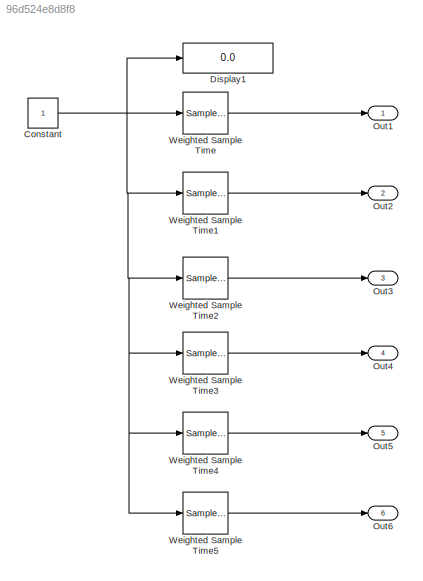
MODEL slx_96d524e8d8f8
KIND model
CONFIG AbsTol = auto
CONFIG EnableMultiTasking = on
CONFIG FixedStep = 0.200000
CONFIG MaxStep = auto
CONFIG MinStep = auto
CONFIG RelTol = 1e-3
CONFIG SampleTimeConstraint = Unconstrained
CONFIG Solver = FixedStepDiscrete
CONFIG SolverName = FixedStepDiscrete
CONFIG StartTime = 0.0
CONFIG StopTime = 10.0
BLOCK [Constant] Constant
BLOCK [Display] Display1
  Decimation = 1
  Ports = [1]
BLOCK [Outport] Out1
  IconDisplay = Port number
BLOCK [Outport] Out2
  IconDisplay = Port number
  Port = 2
BLOCK [Outport] Out3
  IconDisplay = Port number
  Port = 3
BLOCK [Outport] Out4
  IconDisplay = Port number
  Port = 4
BLOCK [Outport] Out5
  IconDisplay = Port number
  Port = 5
BLOCK [Outport] Out6
  IconDisplay = Port number
  Port = 6
BLOCK [SampleTimeMath] Weighted Sample Time
  weightValue = 2
BLOCK [SampleTimeMath] Weighted Sample Time1
  TsampMathOp = -
  weightValue = 2
BLOCK [SampleTimeMath] Weighted Sample Time2
  TsampMathOp = *
  weightValue = 2
BLOCK [SampleTimeMath] Weighted Sample Time3
  TsampMathOp = /
  weightValue = 2
BLOCK [SampleTimeMath] Weighted Sample Time4
  TsampMathOp = Ts Only
  weightValue = 2
BLOCK [SampleTimeMath] Weighted Sample Time5
  TsampMathOp = 1/Ts Only
  weightValue = 2
NET Constant:1 -> Display1:1, Weighted Sample Time1:1, Weighted Sample Time2:1, Weighted Sample Time3:1, Weighted Sample Time4:1, Weighted Sample Time5:1, Weighted Sample Time:1
LINE Weighted Sample Time1:1 -> Out2:1
LINE Weighted Sample Time2:1 -> Out3:1
LINE Weighted Sample Time3:1 -> Out4:1
LINE Weighted Sample Time4:1 -> Out5:1
LINE Weighted Sample Time5:1 -> Out6:1
LINE Weighted Sample Time:1 -> Out1:1
note: NET lines group one-source signal fan-out (src -> all destinations, sorted); 1:1 wires keep LINE
